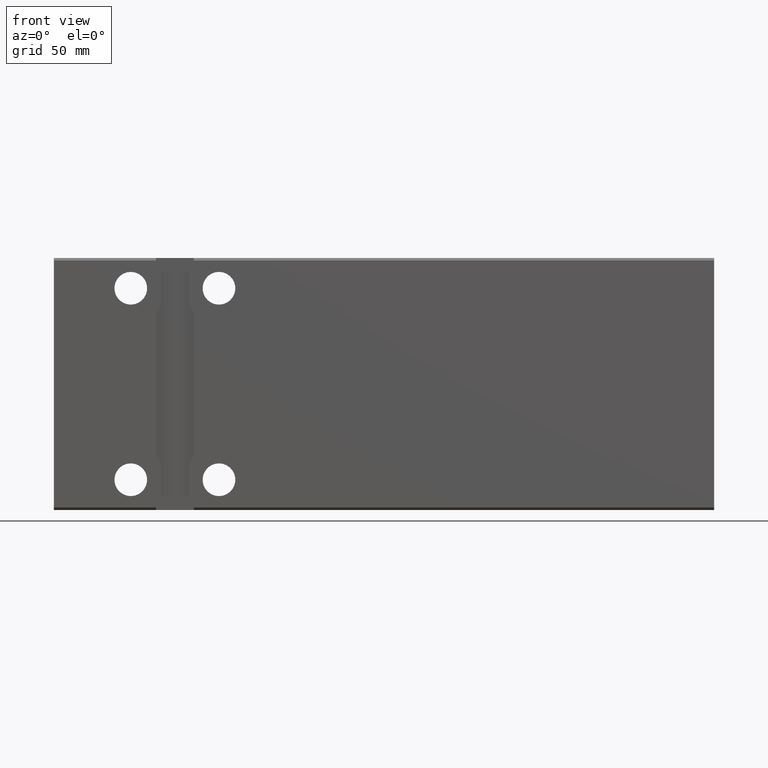
[diagram: clean part render]
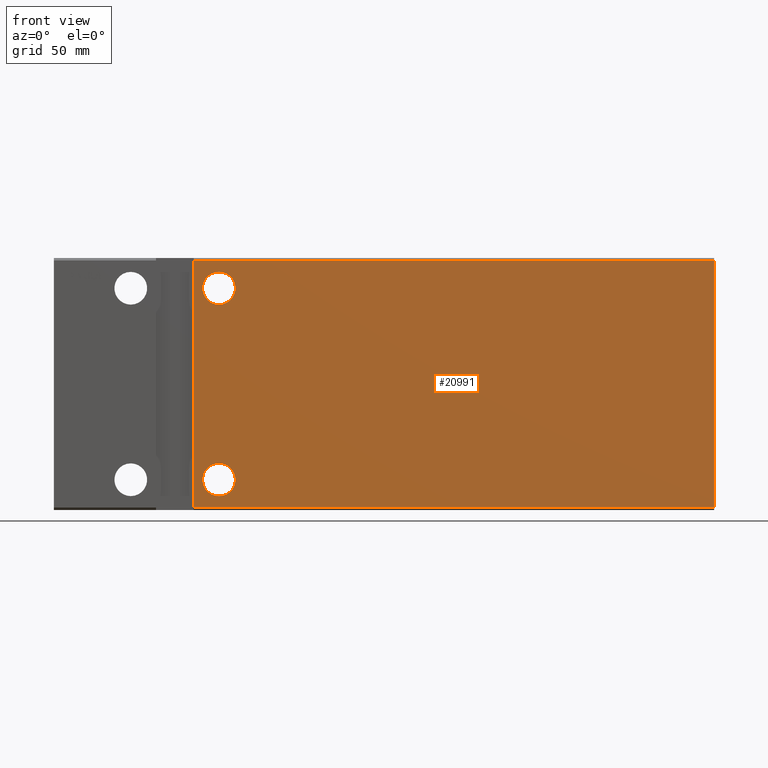
[diagram: same view with one face highlighted and labeled with its STEP entity id]
A machine part, front view. The second image highlights one B-rep face of the part: STEP entity #20991.
In plain terms, the highlighted planar face has unit normal (-0, 1, 0).
Its self-contained STEP definition (entity closure, byte-faithful):
#670 = AXIS2_PLACEMENT_3D ( 'NONE', #11662, #30322, #37379 ) ;
#772 = ORIENTED_EDGE ( 'NONE', *, *, #19585, .F. ) ;
#1286 = VECTOR ( 'NONE', #31394, 1000.000000000000000 ) ;
#2772 = LINE ( 'NONE', #34076, #34123 ) ;
#3264 = CARTESIAN_POINT ( 'NONE',  ( 262.0000000000000000, -37.50000000000001421, -49.00000000000000000 ) ) ;
#3480 = DIRECTION ( 'NONE',  ( 0.000000000000000000, 0.000000000000000000, 1.000000000000000000 ) ) ;
#3807 = VERTEX_POINT ( 'NONE', #8889 ) ;
#4929 = CARTESIAN_POINT ( 'NONE',  ( 55.50000000000000711, -37.50000000000001421, -48.99999999999997158 ) ) ;
#5559 = CARTESIAN_POINT ( 'NONE',  ( 65.50000000000000000, -37.50000000000001421, 38.00000000000000000 ) ) ;
#6647 = CARTESIAN_POINT ( 'NONE',  ( 65.50000000000001421, -37.50000000000001421, -38.00000000000000000 ) ) ;
#6850 = ORIENTED_EDGE ( 'NONE', *, *, #25783, .T. ) ;
#7443 = VERTEX_POINT ( 'NONE', #11476 ) ;
#7563 = CARTESIAN_POINT ( 'NONE',  ( 65.50000000000001421, -37.50000000000001421, -31.50000000000000000 ) ) ;
#7899 = ORIENTED_EDGE ( 'NONE', *, *, #39739, .T. ) ;
#8234 = AXIS2_PLACEMENT_3D ( 'NONE', #5559, #33766, #14884 ) ;
#8889 = CARTESIAN_POINT ( 'NONE',  ( 55.50000000000000000, -37.50000000000001421, 48.99999999999998579 ) ) ;
#9961 = DIRECTION ( 'NONE',  ( 0.000000000000000000, 0.000000000000000000, 1.000000000000000000 ) ) ;
#10689 = FACE_BOUND ( 'NONE', #40926, .T. ) ;
#11358 = EDGE_CURVE ( 'NONE', #34338, #7443, #25437, .T. ) ;
#11446 = PLANE ( 'NONE',  #670 ) ;
#11476 = CARTESIAN_POINT ( 'NONE',  ( 65.50000000000000000, -37.50000000000001421, 44.50000000000000000 ) ) ;
#11662 = CARTESIAN_POINT ( 'NONE',  ( 262.0000000000000000, -37.50000000000001421, 48.99999999999998579 ) ) ;
#12078 = FACE_BOUND ( 'NONE', #20213, .T. ) ;
#12276 = ORIENTED_EDGE ( 'NONE', *, *, #29802, .F. ) ;
#12745 = CARTESIAN_POINT ( 'NONE',  ( 262.0000000000000000, -37.50000000000001421, 48.99999999999998579 ) ) ;
#13008 = DIRECTION ( 'NONE',  ( -0.000000000000000000, 1.000000000000000000, 0.000000000000000000 ) ) ;
#13232 = LINE ( 'NONE', #14044, #28011 ) ;
#14044 = CARTESIAN_POINT ( 'NONE',  ( 262.0000000000000000, -37.50000000000001421, 48.99999999999998579 ) ) ;
#14884 = DIRECTION ( 'NONE',  ( 0.000000000000000000, 0.000000000000000000, 1.000000000000000000 ) ) ;
#15288 = EDGE_LOOP ( 'NONE', ( #6850, #35849, #36934, #772 ) ) ;
#15379 = FACE_OUTER_BOUND ( 'NONE', #15288, .T. ) ;
#17593 = CARTESIAN_POINT ( 'NONE',  ( 262.0000000000000000, -37.50000000000001421, -49.00000000000000000 ) ) ;
#18580 = CARTESIAN_POINT ( 'NONE',  ( 65.50000000000000000, -37.50000000000001421, 38.00000000000000000 ) ) ;
#18723 = LINE ( 'NONE', #22462, #1286 ) ;
#19164 = EDGE_CURVE ( 'NONE', #25179, #19874, #24420, .T. ) ;
#19283 = CARTESIAN_POINT ( 'NONE',  ( 65.50000000000000000, -37.50000000000001421, 31.50000000000000000 ) ) ;
#19585 = EDGE_CURVE ( 'NONE', #37811, #24982, #18723, .T. ) ;
#19874 = VERTEX_POINT ( 'NONE', #28421 ) ;
#20213 = EDGE_LOOP ( 'NONE', ( #7899, #25723 ) ) ;
#20991 = ADVANCED_FACE ( 'NONE', ( #12078, #15379, #10689 ), #11446, .F. ) ;
#22100 = DIRECTION ( 'NONE',  ( 0.000000000000000000, 0.000000000000000000, 1.000000000000000000 ) ) ;
#22323 = DIRECTION ( 'NONE',  ( -1.000000000000000000, -0.000000000000000000, -0.000000000000000000 ) ) ;
#22340 = CARTESIAN_POINT ( 'NONE',  ( 65.50000000000001421, -37.50000000000001421, -38.00000000000000000 ) ) ;
#22462 = CARTESIAN_POINT ( 'NONE',  ( 262.0000000000000000, -37.50000000000001421, 48.99999999999998579 ) ) ;
#24420 = CIRCLE ( 'NONE', #30388, 6.499999999999999112 ) ;
#24939 = DIRECTION ( 'NONE',  ( -6.938893903907229610E-17, -0.000000000000000000, 1.000000000000000000 ) ) ;
#24982 = VERTEX_POINT ( 'NONE', #17593 ) ;
#25179 = VERTEX_POINT ( 'NONE', #7563 ) ;
#25437 = CIRCLE ( 'NONE', #8234, 6.499999999999999112 ) ;
#25723 = ORIENTED_EDGE ( 'NONE', *, *, #19164, .T. ) ;
#25783 = EDGE_CURVE ( 'NONE', #37811, #3807, #13232, .T. ) ;
#26150 = ORIENTED_EDGE ( 'NONE', *, *, #11358, .F. ) ;
#28011 = VECTOR ( 'NONE', #32527, 1000.000000000000000 ) ;
#28421 = CARTESIAN_POINT ( 'NONE',  ( 65.50000000000001421, -37.50000000000001421, -44.50000000000000000 ) ) ;
#29802 = EDGE_CURVE ( 'NONE', #7443, #34338, #30770, .T. ) ;
#30322 = DIRECTION ( 'NONE',  ( -0.000000000000000000, 1.000000000000000000, 0.000000000000000000 ) ) ;
#30388 = AXIS2_PLACEMENT_3D ( 'NONE', #6647, #32363, #9961 ) ;
#30767 = VECTOR ( 'NONE', #22323, 1000.000000000000000 ) ;
#30770 = CIRCLE ( 'NONE', #36070, 6.499999999999999112 ) ;
#31394 = DIRECTION ( 'NONE',  ( 0.000000000000000000, 0.000000000000000000, -1.000000000000000000 ) ) ;
#31543 = CIRCLE ( 'NONE', #39474, 6.499999999999999112 ) ;
#32363 = DIRECTION ( 'NONE',  ( -0.000000000000000000, 1.000000000000000000, 0.000000000000000000 ) ) ;
#32527 = DIRECTION ( 'NONE',  ( -1.000000000000000000, -0.000000000000000000, -0.000000000000000000 ) ) ;
#33766 = DIRECTION ( 'NONE',  ( 0.000000000000000000, -1.000000000000000000, -0.000000000000000000 ) ) ;
#34076 = CARTESIAN_POINT ( 'NONE',  ( 55.50000000000000000, -37.50000000000001421, 49.99999999999998579 ) ) ;
#34123 = VECTOR ( 'NONE', #24939, 1000.000000000000000 ) ;
#34163 = DIRECTION ( 'NONE',  ( 0.000000000000000000, -1.000000000000000000, -0.000000000000000000 ) ) ;
#34338 = VERTEX_POINT ( 'NONE', #19283 ) ;
#35340 = VERTEX_POINT ( 'NONE', #4929 ) ;
#35520 = EDGE_CURVE ( 'NONE', #24982, #35340, #37693, .T. ) ;
#35849 = ORIENTED_EDGE ( 'NONE', *, *, #37223, .F. ) ;
#36070 = AXIS2_PLACEMENT_3D ( 'NONE', #18580, #34163, #22100 ) ;
#36934 = ORIENTED_EDGE ( 'NONE', *, *, #35520, .F. ) ;
#37223 = EDGE_CURVE ( 'NONE', #35340, #3807, #2772, .T. ) ;
#37379 = DIRECTION ( 'NONE',  ( 0.000000000000000000, -0.000000000000000000, 1.000000000000000000 ) ) ;
#37693 = LINE ( 'NONE', #3264, #30767 ) ;
#37811 = VERTEX_POINT ( 'NONE', #12745 ) ;
#39474 = AXIS2_PLACEMENT_3D ( 'NONE', #22340, #13008, #3480 ) ;
#39739 = EDGE_CURVE ( 'NONE', #19874, #25179, #31543, .T. ) ;
#40926 = EDGE_LOOP ( 'NONE', ( #26150, #12276 ) ) ;